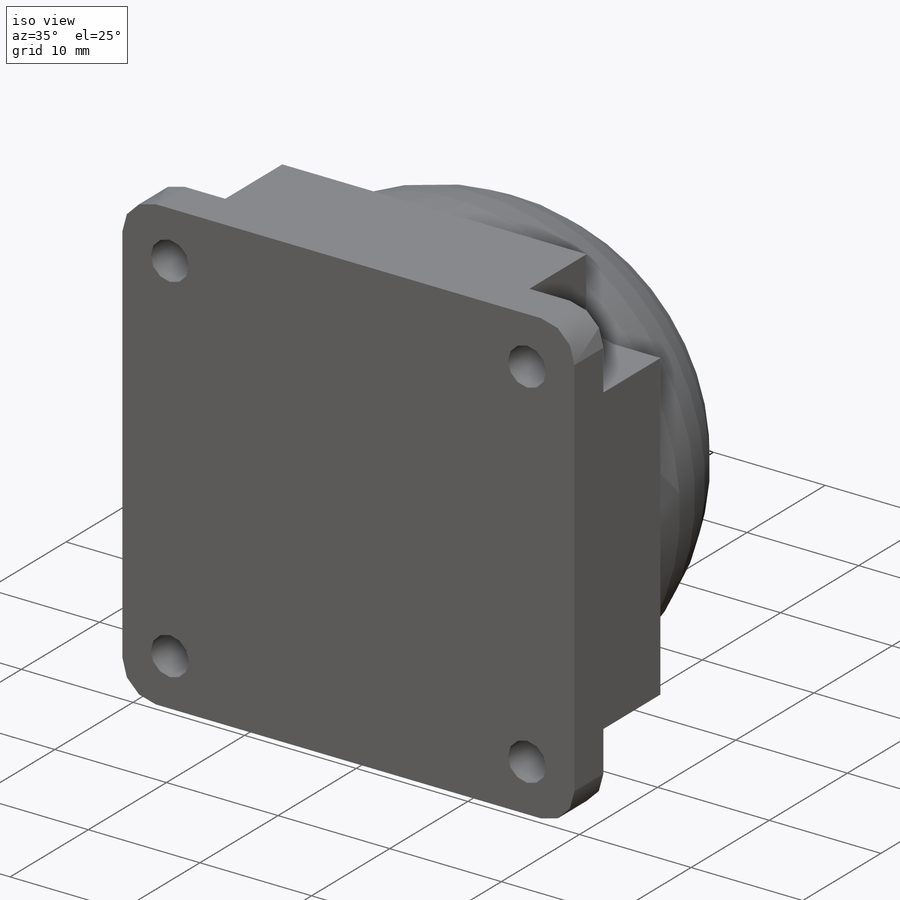
[diagram: iso view]
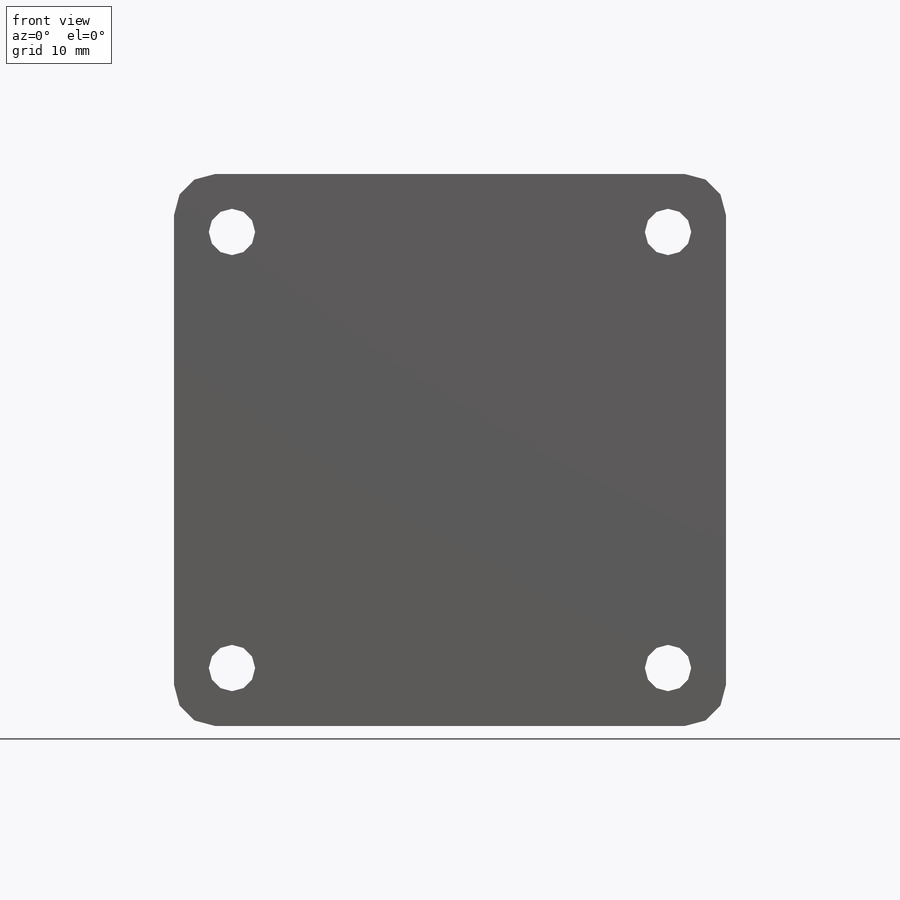
[diagram: front view]
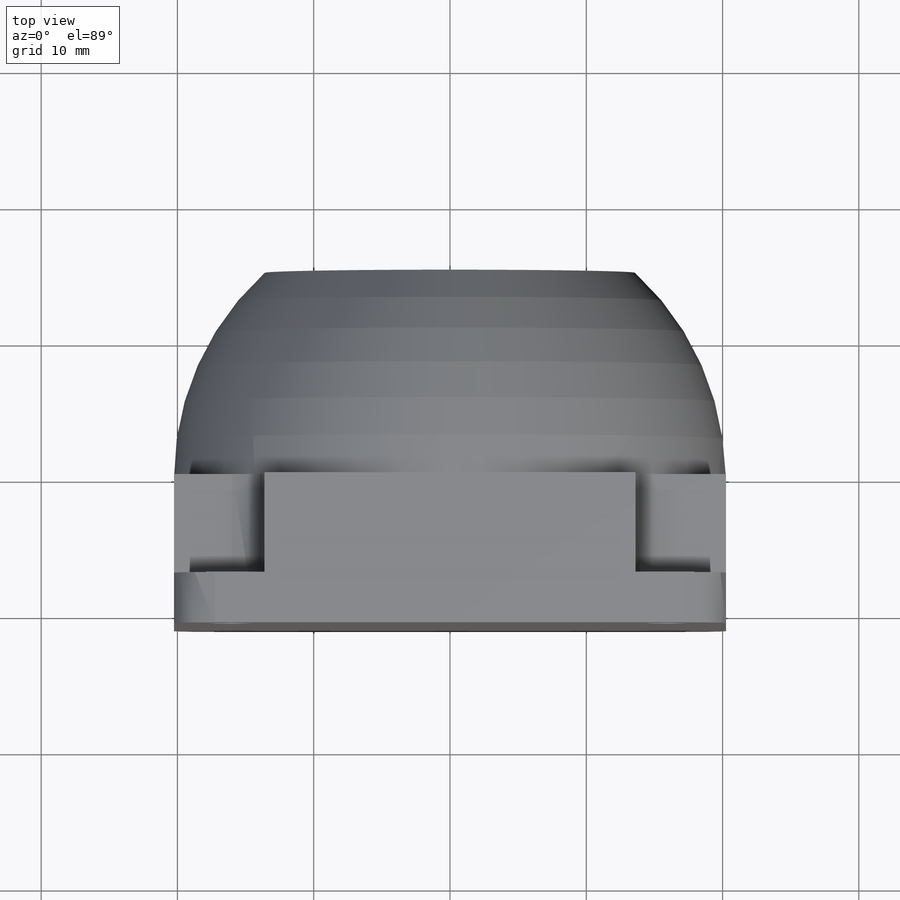
[diagram: top view]
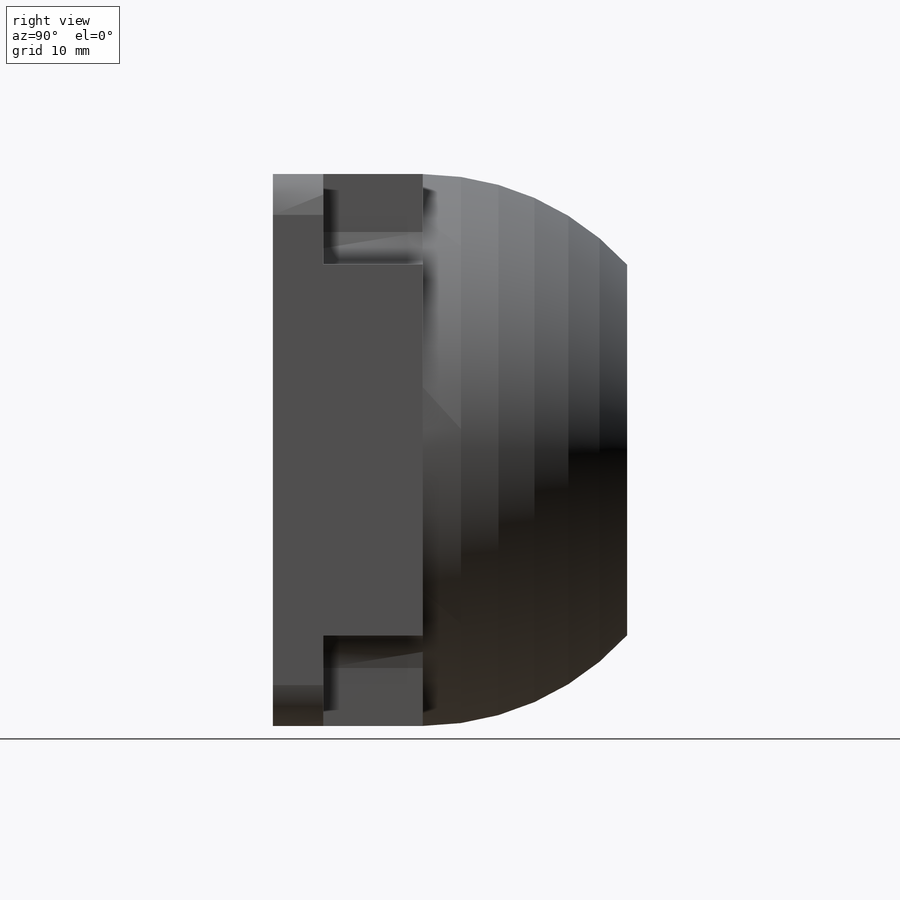
[diagram: right view]
SOLIDWORKS PART (.sldprt)
format: sldprt  version: not decoded by parser v0  size: 319,488 bytes
history: native  units: mm
features: sketch x7, plane x5, cut_extrude x2, material x1, extrude x1, hole x1, revolve x1, fillet x1 (+8 scaffold rows collapsed)
feature tree (27):
  scaffold x8  (default folders/planes/origin — collapsed)
  material  "Материал <не указан>"
  plane  "Спереди"
  plane  "Сверху"
  plane  "Справа"
  sketch  "Эскиз1"  dims[D1=40.5mm D2=40.5mm]
  extrude  "Бобышка-Вытянуть1"  Depth=11mm
  sketch  "Эскиз2"  dims[c1.D1=3.5mm c1.D2=3.5mm c1.D3=3.5mm c1.D4=3.5mm c2.D1=32.0mm c2.D2=32.0mm c3.D1=32.0mm c3.D2=32.0mm c3.D5=4.0]
  hole  "Отверстие с зазором M31"  [1 undecoded]
  sketch  "Эскиз4"
  sketch  "Эскиз5"  dims[hole-wizard template sketch: 61 standard entries collapsed; hole parameters above]
  plane  "Плоскость1"
  sketch  "Эскиз6"
  revolve  "Повернуть1"  Angle=360deg
  plane  "Плоскость2"  Offset=15mm
  sketch  "Эскиз7"
  cut_extrude  "Вырез-Вытянуть1"  Depth=11mm
  sketch  "Эскиз9"  dims[D1=4.0]
  cut_extrude  "Вырез-Вытянуть2"  Depth=7.3mm
  fillet  "Скругление1"  Radius=3mm
decode coverage: 9 of 13 modeling features carry decoded parameters
note: ~ marks probable driven/reference dimensions
note: 1 parameter value undecoded
note: suppression state not decoded; provenance and decode notes live in map.json
